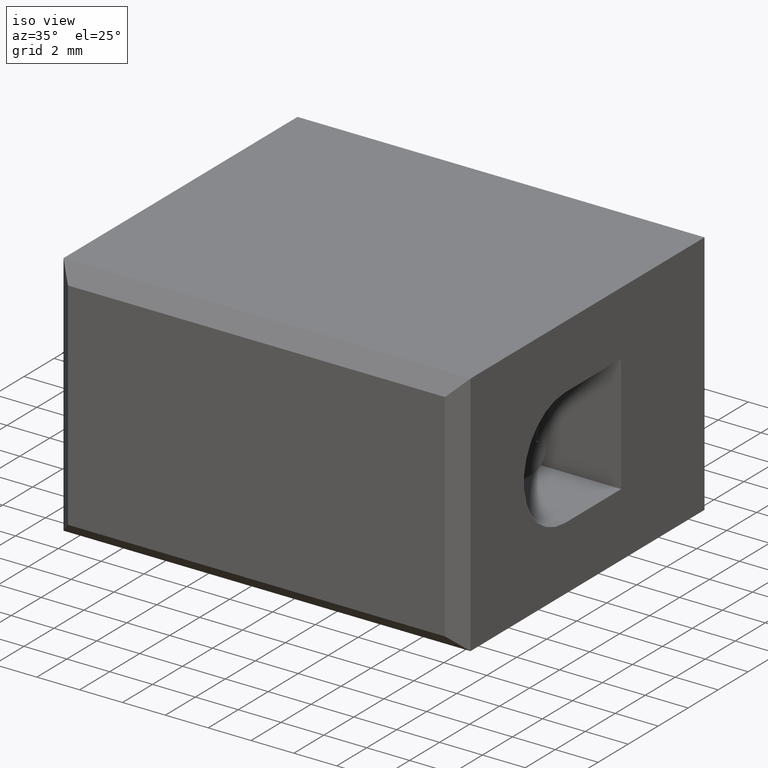
[diagram: clean part render]
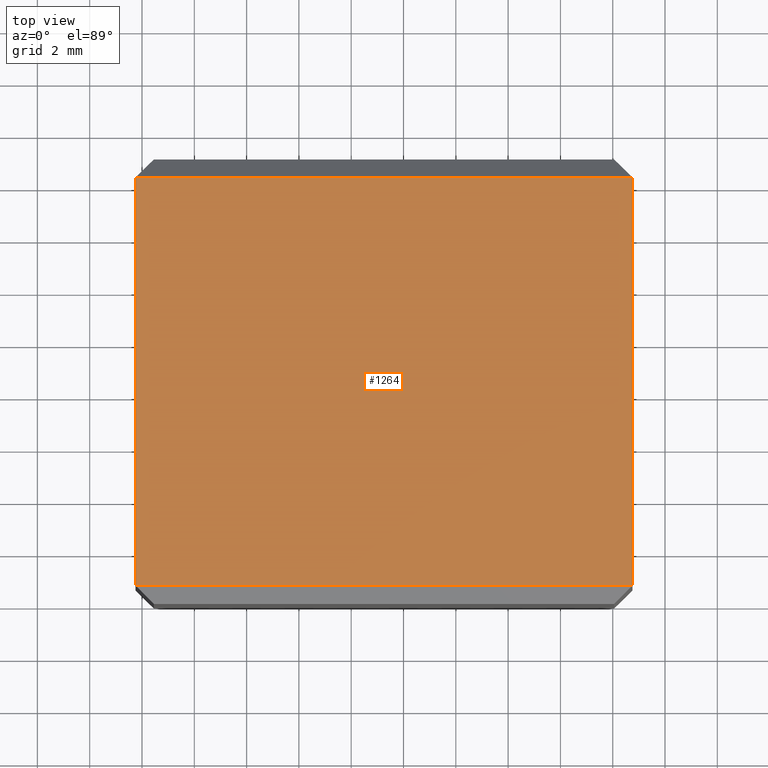
[diagram: tour spotlight — one face highlighted and labeled with its STEP entity id]
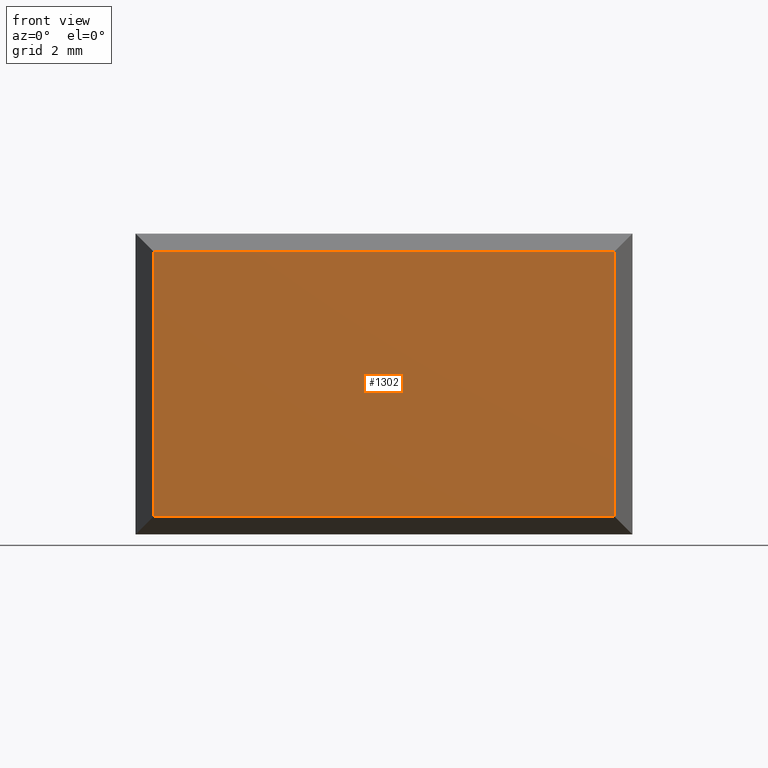
[diagram: tour spotlight — one face highlighted and labeled with its STEP entity id]
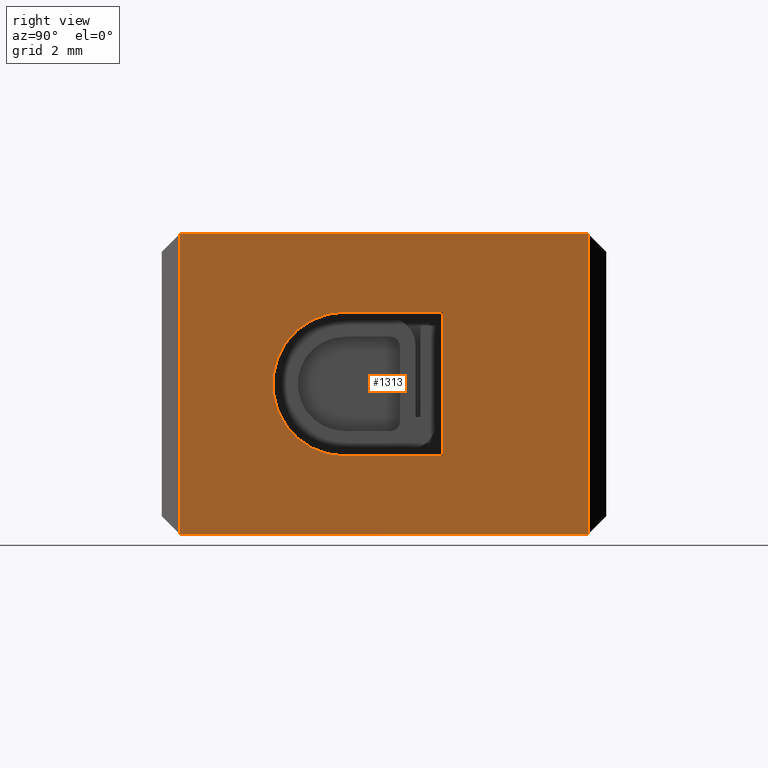
[diagram: tour spotlight — one face highlighted and labeled with its STEP entity id]
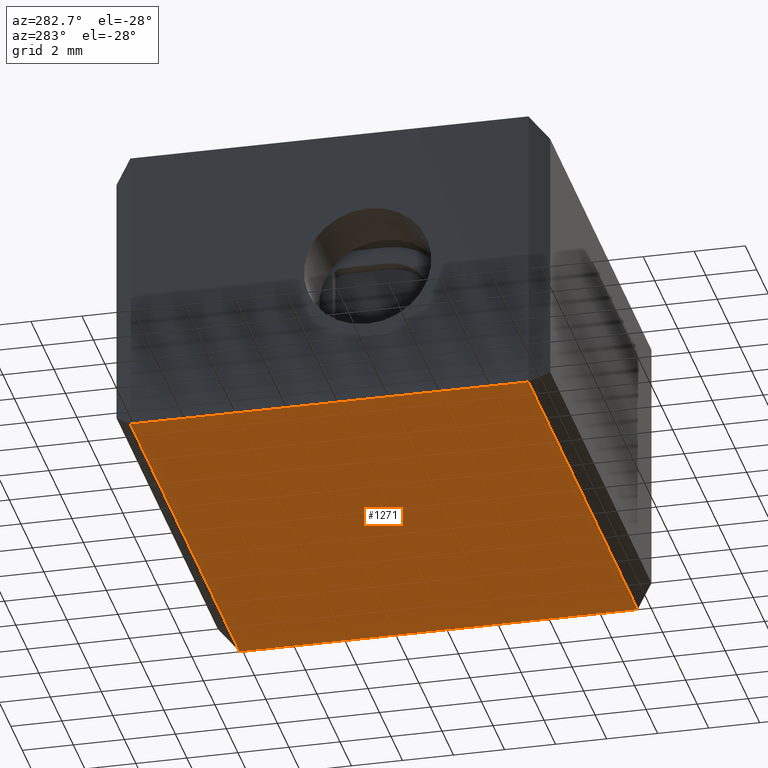
[diagram: tour spotlight — one face highlighted and labeled with its STEP entity id]
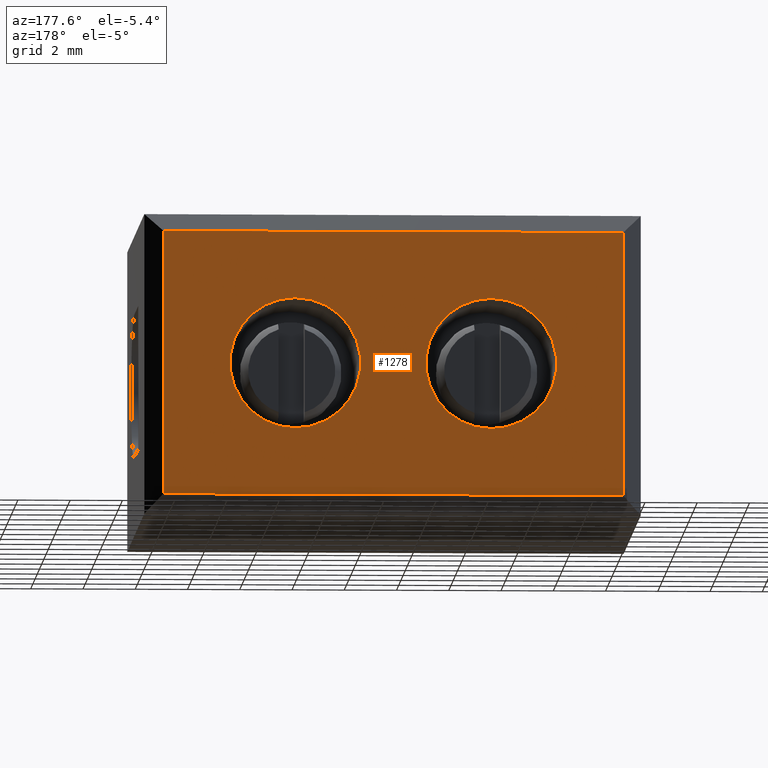
[diagram: tour spotlight — one face highlighted and labeled with its STEP entity id]
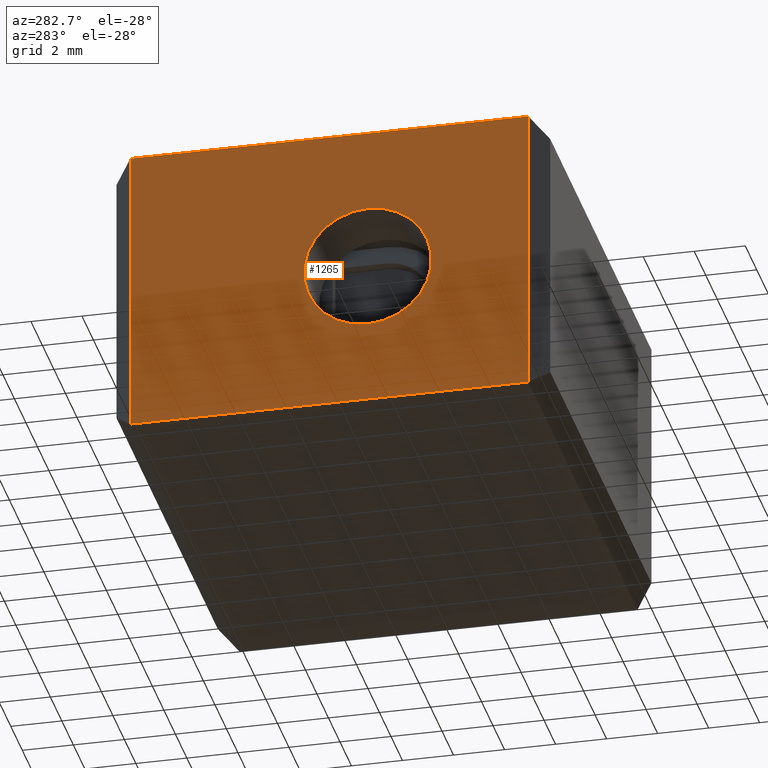
[diagram: tour spotlight — one face highlighted and labeled with its STEP entity id]
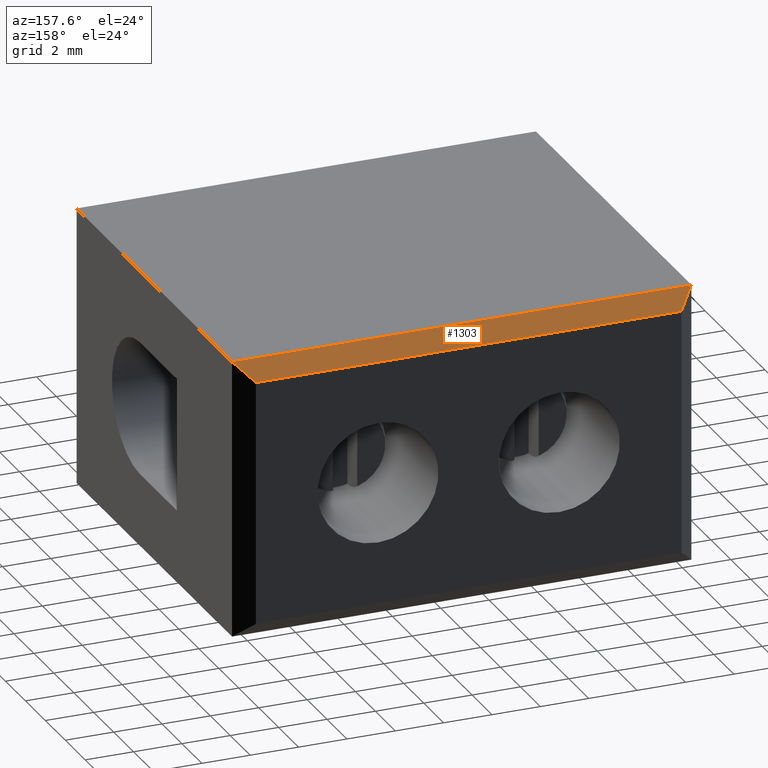
[diagram: tour spotlight — one face highlighted and labeled with its STEP entity id]
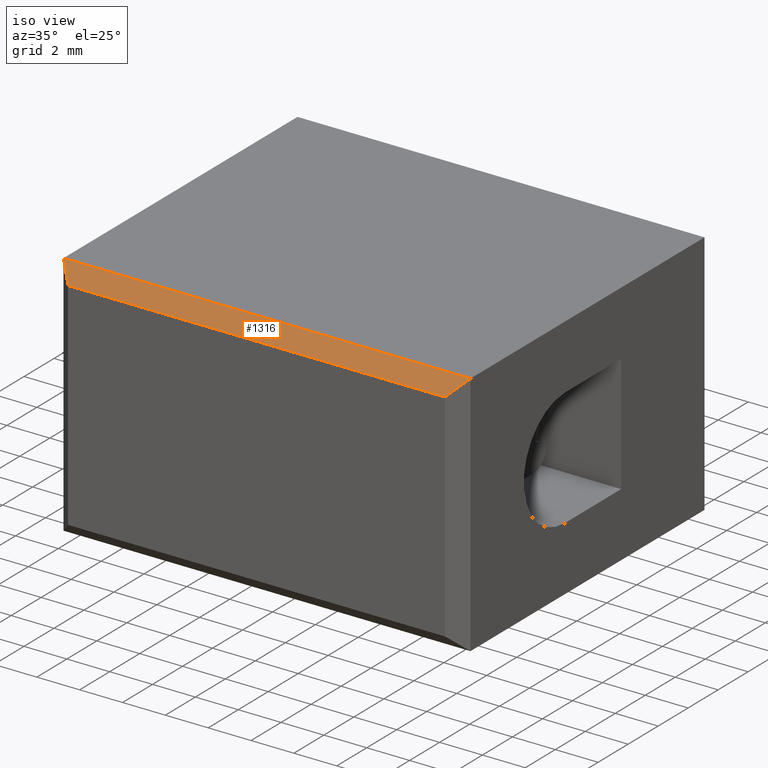
[diagram: tour spotlight — one face highlighted and labeled with its STEP entity id]
A machine part: a face-by-face anatomy tour. The part has 93 B-rep faces; the first image is the clean iso view, then the 8 largest visible faces are spotlighted one at a time (largest first), each with its STEP entity span.

Face 1 — top view, entity #1264. In plain terms, the highlighted planar face has unit normal (-0, -0, 1).
Definition (entity closure, byte-faithful):
#98 = ORIENTED_EDGE ( 'NONE', *, *, #1157, .T. ) ;
#106 = ORIENTED_EDGE ( 'NONE', *, *, #1179, .T. ) ;
#173 = ORIENTED_EDGE ( 'NONE', *, *, #1169, .T. ) ;
#202 = ORIENTED_EDGE ( 'NONE', *, *, #1182, .T. ) ;
#377 = CARTESIAN_POINT ( 'NONE',  ( -0.2461942894294025800, 16.29999999971969900, 0.2501168539620855500 ) ) ;
#378 = CARTESIAN_POINT ( 'NONE',  ( -0.2461942894294021400, 0.7000000002803064000, 0.2501168539620856100 ) ) ;
#428 = CARTESIAN_POINT ( 'NONE',  ( 18.75380571085086200, 16.30000000000000100, 0.2501168581666468000 ) ) ;
#448 = CARTESIAN_POINT ( 'NONE',  ( 18.75380571085086200, 0.7000000000000029500, 0.2501168581666491400 ) ) ;
#649 = VERTEX_POINT ( 'NONE', #377 ) ;
#652 = VERTEX_POINT ( 'NONE', #378 ) ;
#688 = VERTEX_POINT ( 'NONE', #448 ) ;
#701 = VERTEX_POINT ( 'NONE', #428 ) ;
#773 = EDGE_LOOP ( 'NONE', ( #98, #106, #173, #202 ) ) ;
#1157 = EDGE_CURVE ( 'NONE', #688, #701, #2001, .T. ) ;
#1169 = EDGE_CURVE ( 'NONE', #649, #652, #2030, .T. ) ;
#1179 = EDGE_CURVE ( 'NONE', #701, #649, #2097, .T. ) ;
#1182 = EDGE_CURVE ( 'NONE', #652, #688, #2070, .T. ) ;
#1264 = ADVANCED_FACE ( 'NONE', ( #2458 ), #2440, .T. ) ;
#1515 = VECTOR ( 'NONE', #2027, 1000.000000000000000 ) ;
#1523 = VECTOR ( 'NONE', #2050, 1000.000000000000000 ) ;
#1540 = VECTOR ( 'NONE', #2071, 1000.000000000000000 ) ;
#1566 = VECTOR ( 'NONE', #2102, 1000.000000000000000 ) ;
#1628 = AXIS2_PLACEMENT_3D ( 'NONE', #2460, #2447, #2414 ) ;
#1979 = CARTESIAN_POINT ( 'NONE',  ( 18.75380571085086200, 2.696603021115032000, 0.2501168581666463600 ) ) ;
#2001 = LINE ( 'NONE', #1979, #1523 ) ;
#2027 = DIRECTION ( 'NONE',  ( 5.565226573018432400E-036, -1.000000000000000000, -2.357692329667344400E-026 ) ) ;
#2030 = LINE ( 'NONE', #2049, #1515 ) ;
#2049 = CARTESIAN_POINT ( 'NONE',  ( -0.2461942891490986900, 2.696603021115032000, 0.2501168536817818800 ) ) ;
#2050 = DIRECTION ( 'NONE',  ( -5.565226573018432400E-036, 1.000000000000000000, 2.357692329667344400E-026 ) ) ;
#2070 = LINE ( 'NONE', #2080, #1540 ) ;
#2071 = DIRECTION ( 'NONE',  ( 1.000000000000000000, 0.0000000000000000000, 2.360454968186476900E-010 ) ) ;
#2080 = CARTESIAN_POINT ( 'NONE',  ( 3.503805709493637900, 0.7000000000000027300, 0.2501168545669524800 ) ) ;
#2097 = LINE ( 'NONE', #2098, #1566 ) ;
#2098 = CARTESIAN_POINT ( 'NONE',  ( 3.503805709493637900, 16.30000000000000100, 0.2501168545669524800 ) ) ;
#2102 = DIRECTION ( 'NONE',  ( -1.000000000000000000, -0.0000000000000000000, -2.360454968186476900E-010 ) ) ;
#2414 = DIRECTION ( 'NONE',  ( 1.000000000000000000, 0.0000000000000000000, 2.360454968186476900E-010 ) ) ;
#2440 = PLANE ( 'NONE',  #1628 ) ;
#2447 = DIRECTION ( 'NONE',  ( -2.360454968186476900E-010, -2.357692329667344400E-026, 1.000000000000000000 ) ) ;
#2458 = FACE_OUTER_BOUND ( 'NONE', #773, .T. ) ;
#2460 = CARTESIAN_POINT ( 'NONE',  ( 3.503805709493637900, 2.696603021115032000, 0.2501168545669524800 ) ) ;

Face 2 — front view, entity #1302. In plain terms, the highlighted planar face has unit normal (0, 1, 0).
Definition (entity closure, byte-faithful):
#46 = ORIENTED_EDGE ( 'NONE', *, *, #1161, .F. ) ;
#89 = ORIENTED_EDGE ( 'NONE', *, *, #1178, .T. ) ;
#116 = ORIENTED_EDGE ( 'NONE', *, *, #1184, .F. ) ;
#145 = ORIENTED_EDGE ( 'NONE', *, *, #1168, .F. ) ;
#301 = CARTESIAN_POINT ( 'NONE',  ( 18.05380571085085600, -2.620155250173292900E-016, -10.54988314189203200 ) ) ;
#359 = CARTESIAN_POINT ( 'NONE',  ( 0.4538057108509108200, 4.951628028219994500E-016, -0.4498831461529923500 ) ) ;
#401 = CARTESIAN_POINT ( 'NONE',  ( 0.4538057108509112600, -5.421010862427522200E-017, -10.54988314189203200 ) ) ;
#430 = CARTESIAN_POINT ( 'NONE',  ( 18.05380571033154900, -5.193001597112448400E-010, -0.4498831445950945400 ) ) ;
#577 = VERTEX_POINT ( 'NONE', #301 ) ;
#602 = VERTEX_POINT ( 'NONE', #401 ) ;
#650 = VERTEX_POINT ( 'NONE', #359 ) ;
#685 = VERTEX_POINT ( 'NONE', #430 ) ;
#792 = EDGE_LOOP ( 'NONE', ( #89, #145, #116, #46 ) ) ;
#1161 = EDGE_CURVE ( 'NONE', #577, #602, #1973, .T. ) ;
#1168 = EDGE_CURVE ( 'NONE', #650, #685, #2053, .T. ) ;
#1178 = EDGE_CURVE ( 'NONE', #577, #685, #2091, .T. ) ;
#1184 = EDGE_CURVE ( 'NONE', #602, #650, #2104, .T. ) ;
#1302 = ADVANCED_FACE ( 'NONE', ( #2636 ), #2630, .F. ) ;
#1527 = VECTOR ( 'NONE', #2032, 1000.000000000000000 ) ;
#1539 = VECTOR ( 'NONE', #2095, 1000.000000000000000 ) ;
#1556 = VECTOR ( 'NONE', #2054, 1000.000000000000000 ) ;
#1618 = VECTOR ( 'NONE', #2076, 1000.000000000000000 ) ;
#1697 = AXIS2_PLACEMENT_3D ( 'NONE', #2624, #2666, #2671 ) ;
#1973 = LINE ( 'NONE', #2036, #1527 ) ;
#2032 = DIRECTION ( 'NONE',  ( -1.000000000000000000, -0.0000000000000000000, 0.0000000000000000000 ) ) ;
#2034 = CARTESIAN_POINT ( 'NONE',  ( 3.503805709493637900, -3.599695411540815300E-010, -0.4498831457930269100 ) ) ;
#2036 = CARTESIAN_POINT ( 'NONE',  ( -0.2461943037803671100, 0.0000000000000000000, -10.54988314189203200 ) ) ;
#2053 = LINE ( 'NONE', #2034, #1556 ) ;
#2054 = DIRECTION ( 'NONE',  ( 1.000000000000000000, -1.180227484093238700E-010, 1.180227484093226600E-010 ) ) ;
#2074 = CARTESIAN_POINT ( 'NONE',  ( 18.05380571085085300, 0.0000000000000000000, -10.99988314189248600 ) ) ;
#2076 = DIRECTION ( 'NONE',  ( 0.0000000000000000000, -0.0000000000000000000, 1.000000000000000000 ) ) ;
#2085 = CARTESIAN_POINT ( 'NONE',  ( 0.4538057108509112600, 0.0000000000000000000, -10.50067498734996700 ) ) ;
#2091 = LINE ( 'NONE', #2074, #1539 ) ;
#2095 = DIRECTION ( 'NONE',  ( 0.0000000000000000000, 0.0000000000000000000, 1.000000000000000000 ) ) ;
#2104 = LINE ( 'NONE', #2085, #1618 ) ;
#2624 = CARTESIAN_POINT ( 'NONE',  ( -0.2461943037803671100, 0.0000000000000000000, -10.50067498734996700 ) ) ;
#2630 = PLANE ( 'NONE',  #1697 ) ;
#2636 = FACE_OUTER_BOUND ( 'NONE', #792, .T. ) ;
#2666 = DIRECTION ( 'NONE',  ( 0.0000000000000000000, 1.000000000000000000, 0.0000000000000000000 ) ) ;
#2671 = DIRECTION ( 'NONE',  ( 0.0000000000000000000, -0.0000000000000000000, 1.000000000000000000 ) ) ;

Face 3 — right view, entity #1313. In plain terms, the highlighted planar face has unit normal (-1, 0, 0).
Definition (entity closure, byte-faithful):
#42 = ORIENTED_EDGE ( 'NONE', *, *, #1124, .F. ) ;
#66 = ORIENTED_EDGE ( 'NONE', *, *, #1088, .F. ) ;
#81 = ORIENTED_EDGE ( 'NONE', *, *, #1125, .F. ) ;
#87 = ORIENTED_EDGE ( 'NONE', *, *, #1013, .F. ) ;
#129 = ORIENTED_EDGE ( 'NONE', *, *, #1119, .F. ) ;
#131 = ORIENTED_EDGE ( 'NONE', *, *, #1094, .F. ) ;
#139 = ORIENTED_EDGE ( 'NONE', *, *, #1157, .F. ) ;
#140 = ORIENTED_EDGE ( 'NONE', *, *, #1112, .F. ) ;
#187 = ORIENTED_EDGE ( 'NONE', *, *, #1131, .F. ) ;
#278 = CARTESIAN_POINT ( 'NONE',  ( 18.75380571085086200, 7.000566520338794300, -2.749883200246224600 ) ) ;
#313 = CARTESIAN_POINT ( 'NONE',  ( 18.75380571085086200, 16.30000000000000100, -11.24988314189204200 ) ) ;
#321 = CARTESIAN_POINT ( 'NONE',  ( 18.75380571085086200, 7.000000000000000000, -2.749883141892533800 ) ) ;
#400 = CARTESIAN_POINT ( 'NONE',  ( 18.75380571085087000, 0.7000000000000032900, -11.24988314189204200 ) ) ;
#411 = CARTESIAN_POINT ( 'NONE',  ( 18.75380571085086200, 10.75000000000000000, -8.250655609693069400 ) ) ;
#415 = CARTESIAN_POINT ( 'NONE',  ( 18.75380571085086200, 7.000000000000000000, -8.249883141892539100 ) ) ;
#428 = CARTESIAN_POINT ( 'NONE',  ( 18.75380571085086200, 16.30000000000000100, 0.2501168581666468000 ) ) ;
#438 = CARTESIAN_POINT ( 'NONE',  ( 18.75380571085086200, 10.75000000000000000, -2.750655611289953800 ) ) ;
#448 = CARTESIAN_POINT ( 'NONE',  ( 18.75380571085086200, 0.7000000000000029500, 0.2501168581666491400 ) ) ;
#458 = CARTESIAN_POINT ( 'NONE',  ( 18.75380571085086200, 7.000000000000000000, -5.499883141892536500 ) ) ;
#459 = DIRECTION ( 'NONE',  ( 1.000000000000000000, 0.0000000000000000000, 0.0000000000000000000 ) ) ;
#462 = DIRECTION ( 'NONE',  ( 0.0000000000000000000, -1.042663430342567800E-011, 1.000000000000000000 ) ) ;
#582 = VERTEX_POINT ( 'NONE', #313 ) ;
#591 = VERTEX_POINT ( 'NONE', #321 ) ;
#596 = VERTEX_POINT ( 'NONE', #278 ) ;
#659 = VERTEX_POINT ( 'NONE', #400 ) ;
#675 = VERTEX_POINT ( 'NONE', #415 ) ;
#684 = VERTEX_POINT ( 'NONE', #438 ) ;
#688 = VERTEX_POINT ( 'NONE', #448 ) ;
#701 = VERTEX_POINT ( 'NONE', #428 ) ;
#722 = VERTEX_POINT ( 'NONE', #411 ) ;
#731 = EDGE_LOOP ( 'NONE', ( #131, #140, #129, #42, #87 ) ) ;
#842 = EDGE_LOOP ( 'NONE', ( #66, #81, #187, #139 ) ) ;
#978 = AXIS2_PLACEMENT_3D ( 'NONE', #2720, #2708, #2704 ) ;
#1013 = EDGE_CURVE ( 'NONE', #596, #591, #1356, .T. ) ;
#1088 = EDGE_CURVE ( 'NONE', #659, #688, #1835, .T. ) ;
#1094 = EDGE_CURVE ( 'NONE', #684, #596, #1826, .T. ) ;
#1112 = EDGE_CURVE ( 'NONE', #722, #684, #1842, .T. ) ;
#1119 = EDGE_CURVE ( 'NONE', #675, #722, #1885, .T. ) ;
#1124 = EDGE_CURVE ( 'NONE', #591, #675, #1457, .T. ) ;
#1125 = EDGE_CURVE ( 'NONE', #582, #659, #1928, .T. ) ;
#1131 = EDGE_CURVE ( 'NONE', #701, #582, #1952, .T. ) ;
#1157 = EDGE_CURVE ( 'NONE', #688, #701, #2001, .T. ) ;
#1313 = ADVANCED_FACE ( 'NONE', ( #2703, #2679 ), #2700, .F. ) ;
#1350 = AXIS2_PLACEMENT_3D ( 'NONE', #458, #459, #462 ) ;
#1356 = CIRCLE ( 'NONE', #1350, 2.750000000000002700 ) ;
#1445 = AXIS2_PLACEMENT_3D ( 'NONE', #1902, #1892, #1920 ) ;
#1454 = VECTOR ( 'NONE', #1925, 1000.000000000000000 ) ;
#1457 = CIRCLE ( 'NONE', #1445, 2.750000000000002700 ) ;
#1466 = VECTOR ( 'NONE', #1939, 1000.000000000000000 ) ;
#1468 = VECTOR ( 'NONE', #1810, 1000.000000000000100 ) ;
#1479 = VECTOR ( 'NONE', #1924, 1000.000000000000000 ) ;
#1485 = VECTOR ( 'NONE', #1888, 1000.000000000000000 ) ;
#1502 = VECTOR ( 'NONE', #1833, 1000.000000000000000 ) ;
#1523 = VECTOR ( 'NONE', #2050, 1000.000000000000000 ) ;
#1803 = CARTESIAN_POINT ( 'NONE',  ( 18.75380571085086200, 0.7000000000000027300, -10.99988314189248600 ) ) ;
#1810 = DIRECTION ( 'NONE',  ( 0.0000000000000000000, -0.9999999787804762000, 0.0002060073959251787900 ) ) ;
#1811 = CARTESIAN_POINT ( 'NONE',  ( 18.75380571085086200, 10.75000000000000000, -2.750655611289953800 ) ) ;
#1826 = LINE ( 'NONE', #1811, #1468 ) ;
#1833 = DIRECTION ( 'NONE',  ( 0.0000000000000000000, 0.0000000000000000000, 1.000000000000000000 ) ) ;
#1835 = LINE ( 'NONE', #1803, #1502 ) ;
#1842 = LINE ( 'NONE', #1906, #1454 ) ;
#1885 = LINE ( 'NONE', #1903, #1479 ) ;
#1888 = DIRECTION ( 'NONE',  ( -0.0000000000000000000, -1.000000000000000000, 0.0000000000000000000 ) ) ;
#1892 = DIRECTION ( 'NONE',  ( 1.000000000000000000, 0.0000000000000000000, 0.0000000000000000000 ) ) ;
#1902 = CARTESIAN_POINT ( 'NONE',  ( 18.75380571085086200, 7.000000000000000000, -5.499883141892536500 ) ) ;
#1903 = CARTESIAN_POINT ( 'NONE',  ( 18.75380571085086200, 6.999999999999999100, -8.249883141892539100 ) ) ;
#1906 = CARTESIAN_POINT ( 'NONE',  ( 18.75380571085086200, 10.75000000000000000, -10.99988314189248600 ) ) ;
#1909 = CARTESIAN_POINT ( 'NONE',  ( 18.75380571085086200, 17.00000000000000000, -11.24988314189204200 ) ) ;
#1920 = DIRECTION ( 'NONE',  ( 0.0000000000000000000, 0.0000000000000000000, 1.000000000000000000 ) ) ;
#1924 = DIRECTION ( 'NONE',  ( 0.0000000000000000000, 0.9999999787837695600, -0.0002059914091044466200 ) ) ;
#1925 = DIRECTION ( 'NONE',  ( 0.0000000000000000000, 0.0000000000000000000, 1.000000000000000000 ) ) ;
#1928 = LINE ( 'NONE', #1909, #1485 ) ;
#1939 = DIRECTION ( 'NONE',  ( -0.0000000000000000000, -0.0000000000000000000, -1.000000000000000000 ) ) ;
#1945 = CARTESIAN_POINT ( 'NONE',  ( 18.75380571085086200, 16.30000000000000100, -10.99988314189248600 ) ) ;
#1952 = LINE ( 'NONE', #1945, #1466 ) ;
#1979 = CARTESIAN_POINT ( 'NONE',  ( 18.75380571085086200, 2.696603021115032000, 0.2501168581666463600 ) ) ;
#2001 = LINE ( 'NONE', #1979, #1523 ) ;
#2050 = DIRECTION ( 'NONE',  ( -5.565226573018432400E-036, 1.000000000000000000, 2.357692329667344400E-026 ) ) ;
#2679 = FACE_OUTER_BOUND ( 'NONE', #842, .T. ) ;
#2700 = PLANE ( 'NONE',  #978 ) ;
#2703 = FACE_BOUND ( 'NONE', #731, .T. ) ;
#2704 = DIRECTION ( 'NONE',  ( 0.0000000000000000000, 0.0000000000000000000, 1.000000000000000000 ) ) ;
#2708 = DIRECTION ( 'NONE',  ( -1.000000000000000000, 0.0000000000000000000, 0.0000000000000000000 ) ) ;
#2720 = CARTESIAN_POINT ( 'NONE',  ( 18.75380571085086200, 17.00000000000000000, -10.99988314189248600 ) ) ;

Face 4 — auxiliary view, entity #1271. In plain terms, the highlighted planar face has unit normal (0, 0, 1).
Definition (entity closure, byte-faithful):
#88 = ORIENTED_EDGE ( 'NONE', *, *, #1069, .F. ) ;
#97 = ORIENTED_EDGE ( 'NONE', *, *, #1099, .F. ) ;
#103 = ORIENTED_EDGE ( 'NONE', *, *, #1125, .T. ) ;
#138 = ORIENTED_EDGE ( 'NONE', *, *, #1100, .T. ) ;
#313 = CARTESIAN_POINT ( 'NONE',  ( 18.75380571085086200, 16.30000000000000100, -11.24988314189204200 ) ) ;
#333 = CARTESIAN_POINT ( 'NONE',  ( -0.2461942891490987400, 0.7000000000000027300, -11.24988314189204200 ) ) ;
#364 = CARTESIAN_POINT ( 'NONE',  ( -0.2461942891490984700, 16.30000000000000100, -11.24988314189204200 ) ) ;
#400 = CARTESIAN_POINT ( 'NONE',  ( 18.75380571085087000, 0.7000000000000032900, -11.24988314189204200 ) ) ;
#582 = VERTEX_POINT ( 'NONE', #313 ) ;
#592 = VERTEX_POINT ( 'NONE', #333 ) ;
#646 = VERTEX_POINT ( 'NONE', #364 ) ;
#659 = VERTEX_POINT ( 'NONE', #400 ) ;
#751 = EDGE_LOOP ( 'NONE', ( #88, #138, #97, #103 ) ) ;
#1069 = EDGE_CURVE ( 'NONE', #592, #659, #1706, .T. ) ;
#1099 = EDGE_CURVE ( 'NONE', #582, #646, #1828, .T. ) ;
#1100 = EDGE_CURVE ( 'NONE', #592, #646, #1830, .T. ) ;
#1125 = EDGE_CURVE ( 'NONE', #582, #659, #1928, .T. ) ;
#1271 = ADVANCED_FACE ( 'NONE', ( #2485 ), #2491, .F. ) ;
#1410 = VECTOR ( 'NONE', #1776, 1000.000000000000000 ) ;
#1443 = VECTOR ( 'NONE', #1860, 1000.000000000000000 ) ;
#1481 = VECTOR ( 'NONE', #1883, 1000.000000000000000 ) ;
#1485 = VECTOR ( 'NONE', #1888, 1000.000000000000000 ) ;
#1653 = AXIS2_PLACEMENT_3D ( 'NONE', #2462, #2492, #2494 ) ;
#1706 = LINE ( 'NONE', #1750, #1410 ) ;
#1750 = CARTESIAN_POINT ( 'NONE',  ( 1.009145358930929600, 0.7000000000000027300, -11.24988314189204200 ) ) ;
#1776 = DIRECTION ( 'NONE',  ( 1.000000000000000000, 0.0000000000000000000, -0.0000000000000000000 ) ) ;
#1828 = LINE ( 'NONE', #1844, #1481 ) ;
#1830 = LINE ( 'NONE', #1877, #1443 ) ;
#1844 = CARTESIAN_POINT ( 'NONE',  ( 1.009145358930929600, 16.30000000000000100, -11.24988314189204200 ) ) ;
#1860 = DIRECTION ( 'NONE',  ( 0.0000000000000000000, 1.000000000000000000, 0.0000000000000000000 ) ) ;
#1877 = CARTESIAN_POINT ( 'NONE',  ( -0.2461942891490984700, 17.00000000000000000, -11.24988314189204200 ) ) ;
#1883 = DIRECTION ( 'NONE',  ( -1.000000000000000000, -0.0000000000000000000, 0.0000000000000000000 ) ) ;
#1888 = DIRECTION ( 'NONE',  ( -0.0000000000000000000, -1.000000000000000000, 0.0000000000000000000 ) ) ;
#1909 = CARTESIAN_POINT ( 'NONE',  ( 18.75380571085086200, 17.00000000000000000, -11.24988314189204200 ) ) ;
#1928 = LINE ( 'NONE', #1909, #1485 ) ;
#2462 = CARTESIAN_POINT ( 'NONE',  ( 1.009145358930929600, 17.00000000000000000, -11.24988314189204200 ) ) ;
#2485 = FACE_OUTER_BOUND ( 'NONE', #751, .T. ) ;
#2491 = PLANE ( 'NONE',  #1653 ) ;
#2492 = DIRECTION ( 'NONE',  ( 0.0000000000000000000, 0.0000000000000000000, 1.000000000000000000 ) ) ;
#2494 = DIRECTION ( 'NONE',  ( 1.000000000000000000, 0.0000000000000000000, -0.0000000000000000000 ) ) ;

Face 5 — auxiliary view, entity #1278. In plain terms, the highlighted planar face has unit normal (0, 1, 0).
Definition (entity closure, byte-faithful):
#91 = ORIENTED_EDGE ( 'NONE', *, *, #1103, .T. ) ;
#96 = ORIENTED_EDGE ( 'NONE', *, *, #1180, .T. ) ;
#107 = ORIENTED_EDGE ( 'NONE', *, *, #1089, .T. ) ;
#108 = ORIENTED_EDGE ( 'NONE', *, *, #1107, .T. ) ;
#114 = ORIENTED_EDGE ( 'NONE', *, *, #1056, .T. ) ;
#119 = ORIENTED_EDGE ( 'NONE', *, *, #1114, .T. ) ;
#128 = ORIENTED_EDGE ( 'NONE', *, *, #1162, .T. ) ;
#135 = ORIENTED_EDGE ( 'NONE', *, *, #1117, .T. ) ;
#340 = CARTESIAN_POINT ( 'NONE',  ( 5.503805710850900600, 17.00000000000000000, -7.999883141892044400 ) ) ;
#346 = CARTESIAN_POINT ( 'NONE',  ( 13.00380571085090000, 17.00000000000000000, -2.999883141892040900 ) ) ;
#350 = CARTESIAN_POINT ( 'NONE',  ( 0.4538057108508973300, 17.00000000000000000, -10.54988314189204600 ) ) ;
#355 = CARTESIAN_POINT ( 'NONE',  ( 5.503805710850900600, 17.00000000000000000, -2.999883141892040900 ) ) ;
#361 = CARTESIAN_POINT ( 'NONE',  ( 13.00380571085090000, 17.00000000000000000, -7.999883141892046200 ) ) ;
#405 = CARTESIAN_POINT ( 'NONE',  ( 18.05380571033156300, 17.00000000051930000, -0.4498831435564821200 ) ) ;
#424 = CARTESIAN_POINT ( 'NONE',  ( 18.05380571085087000, 17.00000000000000000, -10.54988314189204600 ) ) ;
#445 = CARTESIAN_POINT ( 'NONE',  ( 0.4538057108508973800, 17.00000000000000000, -0.4498831461529821400 ) ) ;
#608 = VERTEX_POINT ( 'NONE', #340 ) ;
#612 = VERTEX_POINT ( 'NONE', #346 ) ;
#624 = VERTEX_POINT ( 'NONE', #361 ) ;
#635 = VERTEX_POINT ( 'NONE', #350 ) ;
#647 = VERTEX_POINT ( 'NONE', #355 ) ;
#669 = VERTEX_POINT ( 'NONE', #445 ) ;
#672 = VERTEX_POINT ( 'NONE', #424 ) ;
#695 = VERTEX_POINT ( 'NONE', #405 ) ;
#739 = EDGE_LOOP ( 'NONE', ( #119, #91 ) ) ;
#788 = EDGE_LOOP ( 'NONE', ( #128, #96, #135, #107 ) ) ;
#825 = EDGE_LOOP ( 'NONE', ( #114, #108 ) ) ;
#1056 = EDGE_CURVE ( 'NONE', #647, #608, #1422, .T. ) ;
#1089 = EDGE_CURVE ( 'NONE', #695, #672, #1807, .T. ) ;
#1103 = EDGE_CURVE ( 'NONE', #624, #612, #1476, .T. ) ;
#1107 = EDGE_CURVE ( 'NONE', #608, #647, #1504, .T. ) ;
#1114 = EDGE_CURVE ( 'NONE', #612, #624, #1465, .T. ) ;
#1117 = EDGE_CURVE ( 'NONE', #669, #695, #1887, .T. ) ;
#1162 = EDGE_CURVE ( 'NONE', #672, #635, #2038, .T. ) ;
#1180 = EDGE_CURVE ( 'NONE', #635, #669, #2068, .T. ) ;
#1278 = ADVANCED_FACE ( 'NONE', ( #2539, #2543, #2527 ), #2528, .T. ) ;
#1406 = AXIS2_PLACEMENT_3D ( 'NONE', #1749, #1714, #1747 ) ;
#1422 = CIRCLE ( 'NONE', #1406, 2.500000000000001300 ) ;
#1448 = AXIS2_PLACEMENT_3D ( 'NONE', #1890, #1914, #1894 ) ;
#1450 = AXIS2_PLACEMENT_3D ( 'NONE', #1848, #1852, #1845 ) ;
#1452 = AXIS2_PLACEMENT_3D ( 'NONE', #1869, #1878, #1847 ) ;
#1463 = VECTOR ( 'NONE', #1927, 1000.000000000000000 ) ;
#1465 = CIRCLE ( 'NONE', #1448, 2.500000000000002200 ) ;
#1476 = CIRCLE ( 'NONE', #1452, 2.500000000000002200 ) ;
#1480 = VECTOR ( 'NONE', #1800, 1000.000000000000000 ) ;
#1504 = CIRCLE ( 'NONE', #1450, 2.500000000000001300 ) ;
#1562 = VECTOR ( 'NONE', #2051, 1000.000000000000000 ) ;
#1565 = VECTOR ( 'NONE', #2075, 1000.000000000000000 ) ;
#1648 = AXIS2_PLACEMENT_3D ( 'NONE', #2564, #2544, #2519 ) ;
#1714 = DIRECTION ( 'NONE',  ( -0.0000000000000000000, -1.000000000000000000, -0.0000000000000000000 ) ) ;
#1747 = DIRECTION ( 'NONE',  ( 0.0000000000000000000, 0.0000000000000000000, 1.000000000000000000 ) ) ;
#1749 = CARTESIAN_POINT ( 'NONE',  ( 5.503805710850900600, 17.00000000000000000, -5.499883141892041700 ) ) ;
#1800 = DIRECTION ( 'NONE',  ( -0.0000000000000000000, 0.0000000000000000000, -1.000000000000000000 ) ) ;
#1807 = LINE ( 'NONE', #1837, #1480 ) ;
#1837 = CARTESIAN_POINT ( 'NONE',  ( 18.05380571085086700, 17.00000000000000000, -10.50067498734996700 ) ) ;
#1845 = DIRECTION ( 'NONE',  ( 0.0000000000000000000, 0.0000000000000000000, 1.000000000000000000 ) ) ;
#1847 = DIRECTION ( 'NONE',  ( 0.0000000000000000000, 0.0000000000000000000, 1.000000000000000000 ) ) ;
#1848 = CARTESIAN_POINT ( 'NONE',  ( 5.503805710850900600, 17.00000000000000000, -5.499883141892041700 ) ) ;
#1852 = DIRECTION ( 'NONE',  ( -0.0000000000000000000, -1.000000000000000000, -0.0000000000000000000 ) ) ;
#1869 = CARTESIAN_POINT ( 'NONE',  ( 13.00380571085090000, 17.00000000000000000, -5.499883141892042600 ) ) ;
#1878 = DIRECTION ( 'NONE',  ( -0.0000000000000000000, -1.000000000000000000, -0.0000000000000000000 ) ) ;
#1887 = LINE ( 'NONE', #1898, #1463 ) ;
#1890 = CARTESIAN_POINT ( 'NONE',  ( 13.00380571085090000, 17.00000000000000000, -5.499883141892042600 ) ) ;
#1894 = DIRECTION ( 'NONE',  ( 0.0000000000000000000, 0.0000000000000000000, 1.000000000000000000 ) ) ;
#1898 = CARTESIAN_POINT ( 'NONE',  ( -0.2461943061528112700, 16.99999999991738500, -0.4498831462355985000 ) ) ;
#1914 = DIRECTION ( 'NONE',  ( -0.0000000000000000000, -1.000000000000000000, -0.0000000000000000000 ) ) ;
#1927 = DIRECTION ( 'NONE',  ( 1.000000000000000000, 1.180227484093238400E-010, 1.180227484093243400E-010 ) ) ;
#2028 = CARTESIAN_POINT ( 'NONE',  ( -0.2461943037803671100, 17.00000000000000000, -10.54988314189204600 ) ) ;
#2038 = LINE ( 'NONE', #2028, #1562 ) ;
#2051 = DIRECTION ( 'NONE',  ( -1.000000000000000000, -0.0000000000000000000, 0.0000000000000000000 ) ) ;
#2068 = LINE ( 'NONE', #2093, #1565 ) ;
#2075 = DIRECTION ( 'NONE',  ( 0.0000000000000000000, -0.0000000000000000000, 1.000000000000000000 ) ) ;
#2093 = CARTESIAN_POINT ( 'NONE',  ( 0.4538057108508972700, 17.00000000000000000, -10.50067498734996700 ) ) ;
#2519 = DIRECTION ( 'NONE',  ( 0.0000000000000000000, -0.0000000000000000000, 1.000000000000000000 ) ) ;
#2527 = FACE_OUTER_BOUND ( 'NONE', #788, .T. ) ;
#2528 = PLANE ( 'NONE',  #1648 ) ;
#2539 = FACE_BOUND ( 'NONE', #739, .T. ) ;
#2543 = FACE_BOUND ( 'NONE', #825, .T. ) ;
#2544 = DIRECTION ( 'NONE',  ( 0.0000000000000000000, 1.000000000000000000, 0.0000000000000000000 ) ) ;
#2564 = CARTESIAN_POINT ( 'NONE',  ( -0.2461943037803671100, 17.00000000000000000, -10.50067498734996700 ) ) ;

Face 6 — auxiliary view, entity #1265. In plain terms, the highlighted planar face has unit normal (1, -0, 0).
Definition (entity closure, byte-faithful):
#29 = ORIENTED_EDGE ( 'NONE', *, *, #1169, .F. ) ;
#77 = ORIENTED_EDGE ( 'NONE', *, *, #1087, .F. ) ;
#95 = ORIENTED_EDGE ( 'NONE', *, *, #1159, .F. ) ;
#112 = ORIENTED_EDGE ( 'NONE', *, *, #1093, .F. ) ;
#125 = ORIENTED_EDGE ( 'NONE', *, *, #1100, .F. ) ;
#137 = ORIENTED_EDGE ( 'NONE', *, *, #1194, .F. ) ;
#333 = CARTESIAN_POINT ( 'NONE',  ( -0.2461942891490987400, 0.7000000000000027300, -11.24988314189204200 ) ) ;
#364 = CARTESIAN_POINT ( 'NONE',  ( -0.2461942891490984700, 16.30000000000000100, -11.24988314189204200 ) ) ;
#369 = CARTESIAN_POINT ( 'NONE',  ( -0.2461942891490986900, 7.000000000000000000, -7.999883141892539100 ) ) ;
#377 = CARTESIAN_POINT ( 'NONE',  ( -0.2461942894294025800, 16.29999999971969900, 0.2501168539620855500 ) ) ;
#378 = CARTESIAN_POINT ( 'NONE',  ( -0.2461942894294021400, 0.7000000002803064000, 0.2501168539620856100 ) ) ;
#379 = CARTESIAN_POINT ( 'NONE',  ( -0.2461942891490986900, 7.000000000000000000, -2.999883141892534200 ) ) ;
#592 = VERTEX_POINT ( 'NONE', #333 ) ;
#601 = VERTEX_POINT ( 'NONE', #379 ) ;
#609 = VERTEX_POINT ( 'NONE', #369 ) ;
#646 = VERTEX_POINT ( 'NONE', #364 ) ;
#649 = VERTEX_POINT ( 'NONE', #377 ) ;
#652 = VERTEX_POINT ( 'NONE', #378 ) ;
#737 = EDGE_LOOP ( 'NONE', ( #112, #137 ) ) ;
#836 = EDGE_LOOP ( 'NONE', ( #77, #29, #95, #125 ) ) ;
#1087 = EDGE_CURVE ( 'NONE', #652, #592, #1795, .T. ) ;
#1093 = EDGE_CURVE ( 'NONE', #609, #601, #1500, .T. ) ;
#1100 = EDGE_CURVE ( 'NONE', #592, #646, #1830, .T. ) ;
#1159 = EDGE_CURVE ( 'NONE', #646, #649, #2043, .T. ) ;
#1169 = EDGE_CURVE ( 'NONE', #649, #652, #2030, .T. ) ;
#1194 = EDGE_CURVE ( 'NONE', #601, #609, #1597, .T. ) ;
#1265 = ADVANCED_FACE ( 'NONE', ( #2415, #2411 ), #2489, .F. ) ;
#1443 = VECTOR ( 'NONE', #1860, 1000.000000000000000 ) ;
#1472 = AXIS2_PLACEMENT_3D ( 'NONE', #1831, #1797, #1801 ) ;
#1488 = VECTOR ( 'NONE', #1813, 1000.000000000000000 ) ;
#1500 = CIRCLE ( 'NONE', #1472, 2.500000000000002200 ) ;
#1515 = VECTOR ( 'NONE', #2027, 1000.000000000000000 ) ;
#1543 = VECTOR ( 'NONE', #2040, 1000.000000000000000 ) ;
#1597 = CIRCLE ( 'NONE', #1611, 2.500000000000002200 ) ;
#1611 = AXIS2_PLACEMENT_3D ( 'NONE', #2140, #2144, #2127 ) ;
#1681 = AXIS2_PLACEMENT_3D ( 'NONE', #2486, #2493, #2487 ) ;
#1795 = LINE ( 'NONE', #1832, #1488 ) ;
#1797 = DIRECTION ( 'NONE',  ( -1.000000000000000000, -0.0000000000000000000, -0.0000000000000000000 ) ) ;
#1801 = DIRECTION ( 'NONE',  ( 0.0000000000000000000, 0.0000000000000000000, -1.000000000000000000 ) ) ;
#1813 = DIRECTION ( 'NONE',  ( 0.0000000000000000000, 0.0000000000000000000, -1.000000000000000000 ) ) ;
#1830 = LINE ( 'NONE', #1877, #1443 ) ;
#1831 = CARTESIAN_POINT ( 'NONE',  ( -0.2461942891490986900, 7.000000000000000000, -5.499883141892536500 ) ) ;
#1832 = CARTESIAN_POINT ( 'NONE',  ( -0.2461942891490984700, 0.7000000000000027300, -10.99988314189204200 ) ) ;
#1860 = DIRECTION ( 'NONE',  ( 0.0000000000000000000, 1.000000000000000000, 0.0000000000000000000 ) ) ;
#1877 = CARTESIAN_POINT ( 'NONE',  ( -0.2461942891490984700, 17.00000000000000000, -11.24988314189204200 ) ) ;
#2024 = CARTESIAN_POINT ( 'NONE',  ( -0.2461942891490984700, 16.30000000000000100, -10.99988314189204200 ) ) ;
#2027 = DIRECTION ( 'NONE',  ( 5.565226573018432400E-036, -1.000000000000000000, -2.357692329667344400E-026 ) ) ;
#2030 = LINE ( 'NONE', #2049, #1515 ) ;
#2040 = DIRECTION ( 'NONE',  ( -0.0000000000000000000, -0.0000000000000000000, 1.000000000000000000 ) ) ;
#2043 = LINE ( 'NONE', #2024, #1543 ) ;
#2049 = CARTESIAN_POINT ( 'NONE',  ( -0.2461942891490986900, 2.696603021115032000, 0.2501168536817818800 ) ) ;
#2127 = DIRECTION ( 'NONE',  ( 0.0000000000000000000, 0.0000000000000000000, -1.000000000000000000 ) ) ;
#2140 = CARTESIAN_POINT ( 'NONE',  ( -0.2461942891490986900, 7.000000000000000000, -5.499883141892536500 ) ) ;
#2144 = DIRECTION ( 'NONE',  ( -1.000000000000000000, -0.0000000000000000000, -0.0000000000000000000 ) ) ;
#2411 = FACE_BOUND ( 'NONE', #737, .T. ) ;
#2415 = FACE_OUTER_BOUND ( 'NONE', #836, .T. ) ;
#2486 = CARTESIAN_POINT ( 'NONE',  ( -0.2461942891490984700, 17.00000000000000000, -10.99988314189204200 ) ) ;
#2487 = DIRECTION ( 'NONE',  ( 0.0000000000000000000, 0.0000000000000000000, -1.000000000000000000 ) ) ;
#2489 = PLANE ( 'NONE',  #1681 ) ;
#2493 = DIRECTION ( 'NONE',  ( 1.000000000000000000, -0.0000000000000000000, 0.0000000000000000000 ) ) ;

Face 7 — auxiliary view, entity #1303. In plain terms, the highlighted planar face has unit normal (0, -0.7071, -0.7071).
Definition (entity closure, byte-faithful):
#105 = ORIENTED_EDGE ( 'NONE', *, *, #1179, .F. ) ;
#162 = ORIENTED_EDGE ( 'NONE', *, *, #1074, .F. ) ;
#174 = ORIENTED_EDGE ( 'NONE', *, *, #1158, .F. ) ;
#209 = ORIENTED_EDGE ( 'NONE', *, *, #1117, .F. ) ;
#377 = CARTESIAN_POINT ( 'NONE',  ( -0.2461942894294025800, 16.29999999971969900, 0.2501168539620855500 ) ) ;
#405 = CARTESIAN_POINT ( 'NONE',  ( 18.05380571033156300, 17.00000000051930000, -0.4498831435564821200 ) ) ;
#428 = CARTESIAN_POINT ( 'NONE',  ( 18.75380571085086200, 16.30000000000000100, 0.2501168581666468000 ) ) ;
#445 = CARTESIAN_POINT ( 'NONE',  ( 0.4538057108508973800, 17.00000000000000000, -0.4498831461529821400 ) ) ;
#649 = VERTEX_POINT ( 'NONE', #377 ) ;
#669 = VERTEX_POINT ( 'NONE', #445 ) ;
#695 = VERTEX_POINT ( 'NONE', #405 ) ;
#701 = VERTEX_POINT ( 'NONE', #428 ) ;
#805 = EDGE_LOOP ( 'NONE', ( #105, #174, #209, #162 ) ) ;
#1074 = EDGE_CURVE ( 'NONE', #649, #669, #1780, .T. ) ;
#1117 = EDGE_CURVE ( 'NONE', #669, #695, #1887, .T. ) ;
#1158 = EDGE_CURVE ( 'NONE', #695, #701, #2016, .T. ) ;
#1179 = EDGE_CURVE ( 'NONE', #701, #649, #2097, .T. ) ;
#1303 = ADVANCED_FACE ( 'NONE', ( #2642 ), #2651, .F. ) ;
#1423 = VECTOR ( 'NONE', #1768, 1000.000000000000100 ) ;
#1463 = VECTOR ( 'NONE', #1927, 1000.000000000000000 ) ;
#1512 = VECTOR ( 'NONE', #2046, 1000.000000000000100 ) ;
#1566 = VECTOR ( 'NONE', #2102, 1000.000000000000000 ) ;
#1702 = AXIS2_PLACEMENT_3D ( 'NONE', #2665, #2634, #2653 ) ;
#1757 = CARTESIAN_POINT ( 'NONE',  ( -0.2461942891490985800, 16.30000000000000100, 0.2501168536817813800 ) ) ;
#1768 = DIRECTION ( 'NONE',  ( 0.5773502692350520600, 0.5773502692350547200, -0.5773502690987704100 ) ) ;
#1780 = LINE ( 'NONE', #1757, #1423 ) ;
#1887 = LINE ( 'NONE', #1898, #1463 ) ;
#1898 = CARTESIAN_POINT ( 'NONE',  ( -0.2461943061528112700, 16.99999999991738500, -0.4498831462355985000 ) ) ;
#1927 = DIRECTION ( 'NONE',  ( 1.000000000000000000, 1.180227484093238400E-010, 1.180227484093243400E-010 ) ) ;
#2016 = LINE ( 'NONE', #2045, #1512 ) ;
#2045 = CARTESIAN_POINT ( 'NONE',  ( 18.05380571085086700, 17.00000000000000000, -0.4498831419985811500 ) ) ;
#2046 = DIRECTION ( 'NONE',  ( 0.5773502691441976300, -0.5773502691442006200, 0.5773502692804791700 ) ) ;
#2097 = LINE ( 'NONE', #2098, #1566 ) ;
#2098 = CARTESIAN_POINT ( 'NONE',  ( 3.503805709493637900, 16.30000000000000100, 0.2501168545669524800 ) ) ;
#2102 = DIRECTION ( 'NONE',  ( -1.000000000000000000, -0.0000000000000000000, -2.360454968186476900E-010 ) ) ;
#2634 = DIRECTION ( 'NONE',  ( 1.669093714690137900E-010, -0.7071067811865461300, -0.7071067811865490200 ) ) ;
#2642 = FACE_OUTER_BOUND ( 'NONE', #805, .T. ) ;
#2651 = PLANE ( 'NONE',  #1702 ) ;
#2653 = DIRECTION ( 'NONE',  ( 0.0000000000000000000, 0.7071067811865489100, -0.7071067811865460200 ) ) ;
#2665 = CARTESIAN_POINT ( 'NONE',  ( -0.2461943061528112700, 17.00000000000000000, -0.4498831463182143600 ) ) ;

Face 8 — iso view, entity #1316. In plain terms, the highlighted planar face has unit normal (-0, -0.7071, 0.7071).
Definition (entity closure, byte-faithful):
#26 = ORIENTED_EDGE ( 'NONE', *, *, #1102, .T. ) ;
#79 = ORIENTED_EDGE ( 'NONE', *, *, #1182, .F. ) ;
#141 = ORIENTED_EDGE ( 'NONE', *, *, #1104, .T. ) ;
#143 = ORIENTED_EDGE ( 'NONE', *, *, #1168, .T. ) ;
#359 = CARTESIAN_POINT ( 'NONE',  ( 0.4538057108509108200, 4.951628028219994500E-016, -0.4498831461529923500 ) ) ;
#378 = CARTESIAN_POINT ( 'NONE',  ( -0.2461942894294021400, 0.7000000002803064000, 0.2501168539620856100 ) ) ;
#430 = CARTESIAN_POINT ( 'NONE',  ( 18.05380571033154900, -5.193001597112448400E-010, -0.4498831445950945400 ) ) ;
#448 = CARTESIAN_POINT ( 'NONE',  ( 18.75380571085086200, 0.7000000000000029500, 0.2501168581666491400 ) ) ;
#650 = VERTEX_POINT ( 'NONE', #359 ) ;
#652 = VERTEX_POINT ( 'NONE', #378 ) ;
#685 = VERTEX_POINT ( 'NONE', #430 ) ;
#688 = VERTEX_POINT ( 'NONE', #448 ) ;
#787 = EDGE_LOOP ( 'NONE', ( #26, #79, #141, #143 ) ) ;
#985 = AXIS2_PLACEMENT_3D ( 'NONE', #2675, #2712, #2766 ) ;
#1102 = EDGE_CURVE ( 'NONE', #685, #688, #1846, .T. ) ;
#1104 = EDGE_CURVE ( 'NONE', #652, #650, #1881, .T. ) ;
#1168 = EDGE_CURVE ( 'NONE', #650, #685, #2053, .T. ) ;
#1182 = EDGE_CURVE ( 'NONE', #652, #688, #2070, .T. ) ;
#1316 = ADVANCED_FACE ( 'NONE', ( #2680 ), #2673, .T. ) ;
#1447 = VECTOR ( 'NONE', #1868, 1000.000000000000100 ) ;
#1495 = VECTOR ( 'NONE', #1850, 1000.000000000000000 ) ;
#1540 = VECTOR ( 'NONE', #2071, 1000.000000000000000 ) ;
#1556 = VECTOR ( 'NONE', #2054, 1000.000000000000000 ) ;
#1846 = LINE ( 'NONE', #1867, #1495 ) ;
#1850 = DIRECTION ( 'NONE',  ( 0.5773502691442004000, 0.5773502691441949600, 0.5773502692804819400 ) ) ;
#1867 = CARTESIAN_POINT ( 'NONE',  ( 18.05380571085085300, -3.138991854761548500E-017, -0.4498831419985954700 ) ) ;
#1868 = DIRECTION ( 'NONE',  ( 0.5773502692350548400, -0.5773502692350490600, -0.5773502690987732900 ) ) ;
#1870 = CARTESIAN_POINT ( 'NONE',  ( -0.2461942891490985800, 0.7000000000000028400, 0.2501168536817848800 ) ) ;
#1881 = LINE ( 'NONE', #1870, #1447 ) ;
#2034 = CARTESIAN_POINT ( 'NONE',  ( 3.503805709493637900, -3.599695411540815300E-010, -0.4498831457930269100 ) ) ;
#2053 = LINE ( 'NONE', #2034, #1556 ) ;
#2054 = DIRECTION ( 'NONE',  ( 1.000000000000000000, -1.180227484093238700E-010, 1.180227484093226600E-010 ) ) ;
#2070 = LINE ( 'NONE', #2080, #1540 ) ;
#2071 = DIRECTION ( 'NONE',  ( 1.000000000000000000, 0.0000000000000000000, 2.360454968186476900E-010 ) ) ;
#2080 = CARTESIAN_POINT ( 'NONE',  ( 3.503805709493637900, 0.7000000000000027300, 0.2501168545669524800 ) ) ;
#2673 = PLANE ( 'NONE',  #985 ) ;
#2675 = CARTESIAN_POINT ( 'NONE',  ( 3.503805709493637900, 0.7000000000000027300, 0.2501168545669524800 ) ) ;
#2680 = FACE_OUTER_BOUND ( 'NONE', #787, .T. ) ;
#2712 = DIRECTION ( 'NONE',  ( -1.669093714690126000E-010, -0.7071067811865512400, 0.7071067811865439100 ) ) ;
#2766 = DIRECTION ( 'NONE',  ( 0.0000000000000000000, -0.7071067811865439100, -0.7071067811865512400 ) ) ;